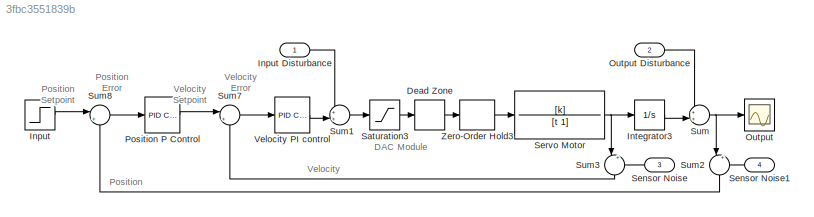
MODEL slx_3fbc3551839b
KIND model
CONFIG AbsTol = auto
CONFIG EnableMultiTasking = off
CONFIG FixedStep = auto
CONFIG MaxStep = auto
CONFIG MinStep = auto
CONFIG RelTol = 1e-3
CONFIG SampleTimeConstraint = Unconstrained
CONFIG SolverName = VariableStepAuto
CONFIG StartTime = 0.0
CONFIG StopTime = 65
BLOCK [DeadZone] Dead Zone
BLOCK [Step] Input
  After = 5
  SampleTime = 0
BLOCK [Inport] Input Disturbance
  Interpolate = off
BLOCK [Integrator] Integrator3
  Ports = [1, 1]
BLOCK [Scope] Output
  Floating = off
  NumInputPorts = 1
  Ports = [1]
  ScopeSpecificationString = Simulink.scopes.TimeScopeBlockCfg('CurrentConfiguration', extmgr.ConfigurationSet(extmgr.Configuration('Core','General UI',true),extmgr.Configuration('Core','Source UI',true),extmgr.Configuration('Sources','WiredSimulink',true),extmgr.Configuration('Visuals','Time Domain',true,'SerializedDisplays',{struct('MinYLimReal','-0.92975','MaxYLimReal','8.36776','YLabelReal','','MinYLimMag','0.00000','MaxY...<+1363ch>
BLOCK [Inport] Output Disturbance
  Port = 2
BLOCK [Reference] Position P Control  REF=slpidlib/PID Controller
  Ports = [1, 1]
  SourceBlock = slpidlib/PID Controller
  SourceProductBaseCode = SL
  SourceType = PID 1dof
BLOCK [Saturate] Saturation3
  LowerLimit = -10
  UpperLimit = +10
BLOCK [Inport] Sensor Noise
  Port = 3
BLOCK [Inport] Sensor Noise1
  Port = 4
BLOCK [TransferFcn] Servo Motor
  Denominator = [t 1]
  Numerator = [k]
BLOCK [Sum] Sum
  Inputs = ++|
  Ports = [2, 1]
BLOCK [Sum] Sum1
  Inputs = ++|
  Ports = [2, 1]
BLOCK [Sum] Sum2
  Inputs = |++
  NameLocation = left
  Ports = [2, 1]
BLOCK [Sum] Sum3
  Inputs = |++
  NameLocation = left
  Ports = [2, 1]
BLOCK [Sum] Sum7
  Inputs = |+-
  Ports = [2, 1]
BLOCK [Sum] Sum8
  Inputs = |+-
  Ports = [2, 1]
BLOCK [Reference] Velocity PI control  REF=slpidlib/PID Controller
  Ports = [1, 1]
  SourceBlock = slpidlib/PID Controller
  SourceProductBaseCode = SL
  SourceType = PID 1dof
BLOCK [ZeroOrderHold] Zero-Order Hold3
  SampleTime = 0.05
ANNOTATION (root): DAC Module
ANNOTATION (root): Position
ANNOTATION (root): Position Setpoint
ANNOTATION (root): Position Error
ANNOTATION (root): Velocity
ANNOTATION (root): Velocity Error
ANNOTATION (root): Velocity Setpoint
LINE Dead Zone:1 -> Zero-Order Hold3:1
LINE Input Disturbance:1 -> Sum1:1
LINE Input:1 -> Sum8:1
LINE Integrator3:1 -> Sum:2
LINE Output Disturbance:1 -> Sum:1
LINE Position P Control:1 -> Sum7:1
LINE Saturation3:1 -> Dead Zone:1
LINE Sensor Noise1:1 -> Sum2:2
LINE Sensor Noise:1 -> Sum3:2
NET Servo Motor:1 -> Integrator3:1, Sum3:1
LINE Sum1:1 -> Saturation3:1
LINE Sum2:1 -> Sum8:2
LINE Sum3:1 -> Sum7:2
LINE Sum7:1 -> Velocity PI control:1
LINE Sum8:1 -> Position P Control:1
NET Sum:1 -> Output:1, Sum2:1
LINE Velocity PI control:1 -> Sum1:2
LINE Zero-Order Hold3:1 -> Servo Motor:1
note: NET lines group one-source signal fan-out (src -> all destinations, sorted); 1:1 wires keep LINE
